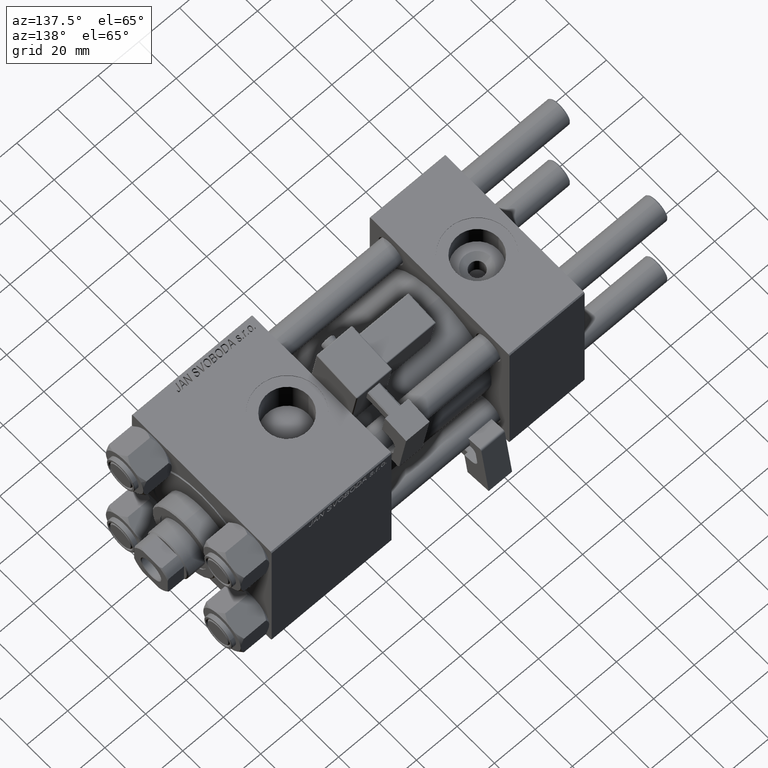
[diagram: clean part render]
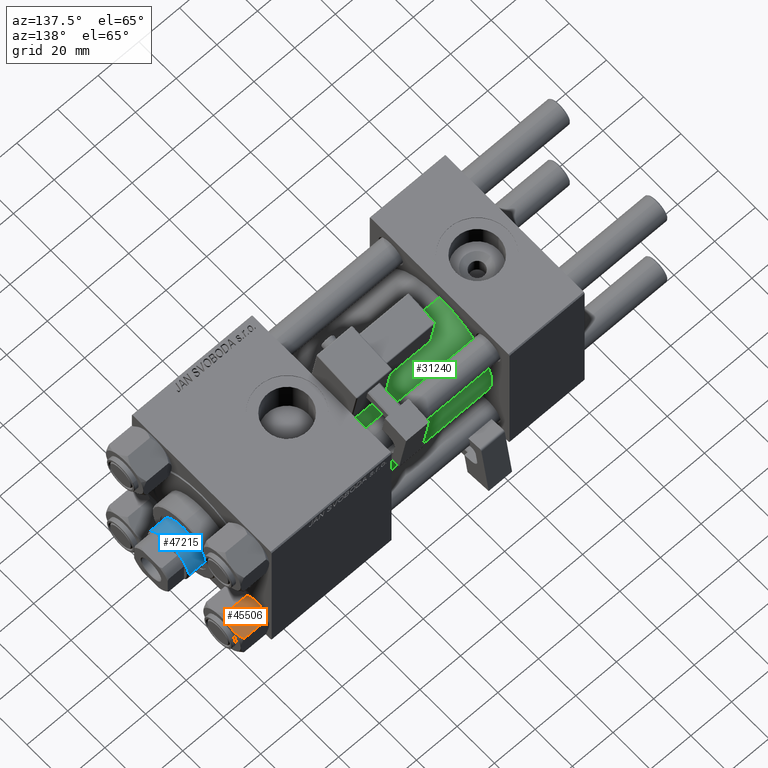
[diagram: same view with three faces highlighted in distinct colors, each labeled with its STEP entity id]
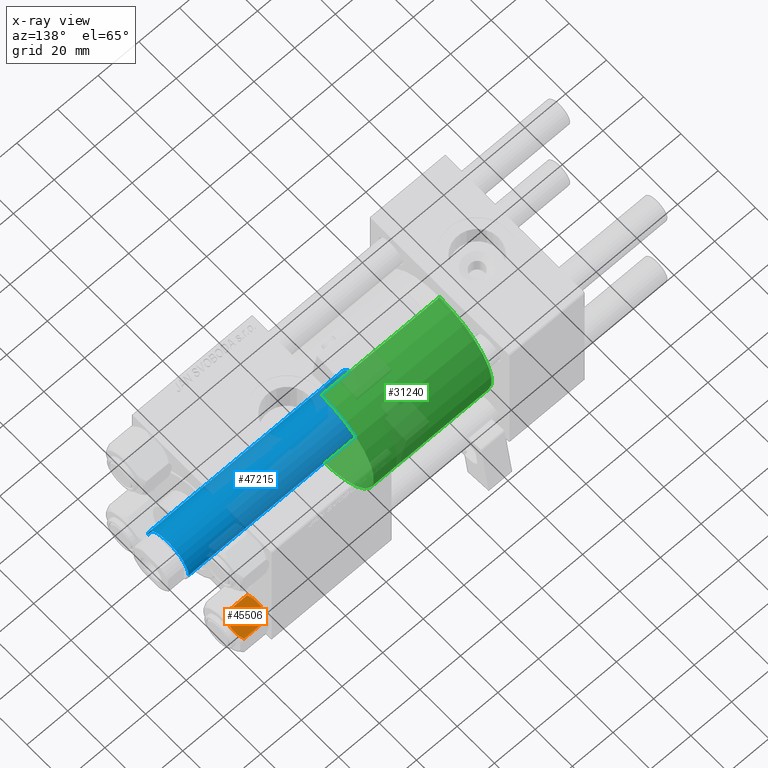
[diagram: x-ray of the same camera — body ghosted, the three highlighted faces saturated]
A machine part, auxiliary view with three faces highlighted in distinct colors.
The next image is the same camera in x-ray (body ghosted, the three faces saturated) — at least one of them is partly hidden behind the body in this view.
Their STEP definitions:

[orange] entity #45506 — the highlighted planar face has unit normal (0, -0.5, -0.866).
#228 = CARTESIAN_POINT ( 'NONE',  ( -8.714999999999992752, -5.031607595987588333, -14.00000000000000000 ) ) ;
#430 = PLANE ( 'NONE',  #39943 ) ;
#538 = CARTESIAN_POINT ( 'NONE',  ( -6.265018354709766868, -9.275100283241449972, -1.101766453314959149 ) ) ;
#747 = CARTESIAN_POINT ( 'NONE',  ( -11.61999999999999922, 6.036006524886462134E-17, -14.00000000000000000 ) ) ;
#920 = B_SPLINE_CURVE_WITH_KNOTS ( 'NONE', 3,
 ( #12351, #24432, #23902, #44404, #538, #36241 ),
 .UNSPECIFIED., .F., .F.,
 ( 4, 2, 4 ),
 ( 0.006022845781655589842, 0.009013049135303640227, 0.01200325248895168714 ),
 .UNSPECIFIED. ) ;
#1212 = VERTEX_POINT ( 'NONE', #19897 ) ;
#1258 = ORIENTED_EDGE ( 'NONE', *, *, #7809, .F. ) ;
#1282 = CARTESIAN_POINT ( 'NONE',  ( -9.729165168613647552, -3.275021996682082825, -0.1903979688073461074 ) ) ;
#1702 = VECTOR ( 'NONE', #44864, 1000.000000000000000 ) ;
#2906 = B_SPLINE_CURVE_WITH_KNOTS ( 'NONE', 3,
 ( #47265, #43582, #12038, #7844, #44354, #4169, #36195, #228 ),
 .UNSPECIFIED., .F., .F.,
 ( 4, 2, 2, 4 ),
 ( 2.544312114902182352E-07, 0.003011550106433542959, 0.004517197944044567919, 0.006022845781655594179 ),
 .UNSPECIFIED. ) ;
#3532 = CARTESIAN_POINT ( 'NONE',  ( -11.61999999999999922, 4.243578825136429979E-17, -12.44321519197517922 ) ) ;
#3778 = CARTESIAN_POINT ( 'NONE',  ( -9.220295946303425083, -4.156409344131452244, -13.99999999999999645 ) ) ;
#4039 = CARTESIAN_POINT ( 'NONE',  ( -11.16498164529022219, -0.7881149087337293579, -12.89823354668504329 ) ) ;
#4169 = CARTESIAN_POINT ( 'NONE',  ( -8.202333004087893897, -5.919572880271055659, -13.96005881939308679 ) ) ;
#5219 = CARTESIAN_POINT ( 'NONE',  ( -8.714999999999992752, -5.031607595987588333, 0.000000000000000000 ) ) ;
#7809 = EDGE_CURVE ( 'NONE', #25996, #42507, #2906, .T. ) ;
#7844 = CARTESIAN_POINT ( 'NONE',  ( -7.455303369716800077, -7.213466161761385109, -13.69973261901325046 ) ) ;
#8564 = DIRECTION ( 'NONE',  ( -0.5000000000000003331, 0.8660254037844384856, 0.000000000000000000 ) ) ;
#9307 = EDGE_CURVE ( 'NONE', #42507, #48278, #11585, .T. ) ;
#9415 = CARTESIAN_POINT ( 'NONE',  ( -10.69859855102501101, -1.595914123792264938, -0.7141438259524708343 ) ) ;
#11585 = B_SPLINE_CURVE_WITH_KNOTS ( 'NONE', 3,
 ( #23228, #3778, #51349, #15338, #4039, #3532 ),
 .UNSPECIFIED., .F., .F.,
 ( 4, 2, 4 ),
 ( 0.006022845781655594179, 0.009013049135303641962, 0.01200325248895168888 ),
 .UNSPECIFIED. ) ;
#12038 = CARTESIAN_POINT ( 'NONE',  ( -6.731401448974980717, -8.467301068182917945, -13.28585617404752917 ) ) ;
#12351 = CARTESIAN_POINT ( 'NONE',  ( -8.714999999999992752, -5.031607595987588333, 0.000000000000000000 ) ) ;
#13362 = CARTESIAN_POINT ( 'NONE',  ( -9.227666995912098713, -4.143642311704126335, -0.03994118060691215222 ) ) ;
#13462 = EDGE_LOOP ( 'NONE', ( #1258, #39566, #17349, #26300, #48926, #48882 ) ) ;
#15338 = CARTESIAN_POINT ( 'NONE',  ( -10.69662495661649793, -1.599332489581332339, -13.28854452935654429 ) ) ;
#17349 = ORIENTED_EDGE ( 'NONE', *, *, #18665, .F. ) ;
#18665 = EDGE_CURVE ( 'NONE', #34138, #28085, #920, .T. ) ;
#19897 = CARTESIAN_POINT ( 'NONE',  ( -11.61999999999999922, -1.565987599140169687E-18, -1.556784808024820776 ) ) ;
#21136 = EDGE_CURVE ( 'NONE', #48278, #1212, #24118, .T. ) ;
#22246 = CARTESIAN_POINT ( 'NONE',  ( -11.16445427487471065, -0.7890283410877966253, -1.101239082899537314 ) ) ;
#23228 = CARTESIAN_POINT ( 'NONE',  ( -8.714999999999992752, -5.031607595987588333, -14.00000000000000000 ) ) ;
#23807 = DIRECTION ( 'NONE',  ( 0.8660254037844384856, 0.5000000000000003331, 0.000000000000000000 ) ) ;
#23902 = CARTESIAN_POINT ( 'NONE',  ( -7.713000053756299046, -6.767122412062954062, -0.1545239700039889863 ) ) ;
#24118 = LINE ( 'NONE', #747, #1702 ) ;
#24432 = CARTESIAN_POINT ( 'NONE',  ( -8.209704053696565751, -5.906805847843727086, -2.149769620131414261E-15 ) ) ;
#24488 = CARTESIAN_POINT ( 'NONE',  ( -8.714999999999992752, -5.031607595987588333, -14.00000000000000000 ) ) ;
#25996 = VERTEX_POINT ( 'NONE', #40125 ) ;
#26300 = ORIENTED_EDGE ( 'NONE', *, *, #32207, .F. ) ;
#26447 = CARTESIAN_POINT ( 'NONE',  ( -9.974696630283190757, -2.849749030213793777, -0.3002673809867424382 ) ) ;
#28085 = VERTEX_POINT ( 'NONE', #30053 ) ;
#28450 = DIRECTION ( 'NONE',  ( -0.000000000000000000, -0.000000000000000000, 1.000000000000000000 ) ) ;
#30053 = CARTESIAN_POINT ( 'NONE',  ( -5.809999999999990727, -10.06321519197518199, -1.556784808024822553 ) ) ;
#30872 = VECTOR ( 'NONE', #28450, 1000.000000000000000 ) ;
#32181 = FACE_OUTER_BOUND ( 'NONE', #13462, .T. ) ;
#32207 = EDGE_CURVE ( 'NONE', #1212, #34138, #33286, .T. ) ;
#33286 = B_SPLINE_CURVE_WITH_KNOTS ( 'NONE', 3,
 ( #37762, #22246, #9415, #26447, #1282, #13362, #41451, #5219 ),
 .UNSPECIFIED., .F., .F.,
 ( 4, 2, 2, 4 ),
 ( 2.544312114904568338E-07, 0.003011550106433539924, 0.004517197944044564449, 0.006022845781655589842 ),
 .UNSPECIFIED. ) ;
#34138 = VERTEX_POINT ( 'NONE', #39053 ) ;
#36195 = CARTESIAN_POINT ( 'NONE',  ( -8.460569896449610994, -5.472293462311864864, -13.99999999999999822 ) ) ;
#36241 = CARTESIAN_POINT ( 'NONE',  ( -5.809999999999990727, -10.06321519197518199, -1.556784808024822553 ) ) ;
#36631 = CARTESIAN_POINT ( 'NONE',  ( -11.61999999999999922, 4.243578825136429979E-17, -12.44321519197517922 ) ) ;
#36866 = LINE ( 'NONE', #48429, #30872 ) ;
#37762 = CARTESIAN_POINT ( 'NONE',  ( -11.61999999999999922, -1.565987599140169687E-18, -1.556784808024820776 ) ) ;
#39053 = CARTESIAN_POINT ( 'NONE',  ( -8.714999999999992752, -5.031607595987588333, 0.000000000000000000 ) ) ;
#39566 = ORIENTED_EDGE ( 'NONE', *, *, #50312, .T. ) ;
#39943 = AXIS2_PLACEMENT_3D ( 'NONE', #40600, #23807, #8564 ) ;
#40125 = CARTESIAN_POINT ( 'NONE',  ( -5.809999999999990727, -10.06321519197518199, -12.44321519197517745 ) ) ;
#40600 = CARTESIAN_POINT ( 'NONE',  ( -5.809999999999990727, -10.06321519197518199, -14.00000000000000000 ) ) ;
#41451 = CARTESIAN_POINT ( 'NONE',  ( -8.969430103550379840, -4.590921729663317130, -2.185345003916095664E-15 ) ) ;
#42507 = VERTEX_POINT ( 'NONE', #24488 ) ;
#43582 = CARTESIAN_POINT ( 'NONE',  ( -6.265545725125275744, -9.274186850887387479, -12.89876091710046246 ) ) ;
#44354 = CARTESIAN_POINT ( 'NONE',  ( -7.700834831386339729, -6.788193195293098725, -13.80960203119265017 ) ) ;
#44404 = CARTESIAN_POINT ( 'NONE',  ( -6.733375043383487579, -8.463882702393844326, -0.7114554706434568221 ) ) ;
#44864 = DIRECTION ( 'NONE',  ( -0.000000000000000000, -0.000000000000000000, 1.000000000000000000 ) ) ;
#45506 = ADVANCED_FACE ( 'NONE', ( #32181 ), #430, .F. ) ;
#47265 = CARTESIAN_POINT ( 'NONE',  ( -5.809999999999990727, -10.06321519197518199, -12.44321519197517745 ) ) ;
#48278 = VERTEX_POINT ( 'NONE', #36631 ) ;
#48429 = CARTESIAN_POINT ( 'NONE',  ( -5.809999999999990727, -10.06321519197518199, -14.00000000000000000 ) ) ;
#48882 = ORIENTED_EDGE ( 'NONE', *, *, #9307, .F. ) ;
#48926 = ORIENTED_EDGE ( 'NONE', *, *, #21136, .F. ) ;
#50312 = EDGE_CURVE ( 'NONE', #25996, #28085, #36866, .T. ) ;
#51349 = CARTESIAN_POINT ( 'NONE',  ( -9.716999946243692676, -3.296092779912225712, -13.84547602999601246 ) ) ;

[blue] entity #47215 — the highlighted cylindrical surface (edge-blend (fillet) strip) has radius 11 mm, axis along (-1, 0, 0).
#303 = ORIENTED_EDGE ( 'NONE', *, *, #26500, .F. ) ;
#1870 = DIRECTION ( 'NONE',  ( 0.000000000000000000, 0.000000000000000000, -1.000000000000000000 ) ) ;
#2698 = VECTOR ( 'NONE', #30554, 1000.000000000000000 ) ;
#3951 = DIRECTION ( 'NONE',  ( 0.000000000000000000, 0.000000000000000000, 1.000000000000000000 ) ) ;
#4639 = DIRECTION ( 'NONE',  ( -0.000000000000000000, -0.000000000000000000, -1.000000000000000000 ) ) ;
#6472 = ORIENTED_EDGE ( 'NONE', *, *, #20944, .T. ) ;
#9717 = CARTESIAN_POINT ( 'NONE',  ( -11.00000000000000000, 0.000000000000000000, 134.0000000000000000 ) ) ;
#9973 = LINE ( 'NONE', #9717, #41093 ) ;
#13528 = LINE ( 'NONE', #18226, #2698 ) ;
#14195 = ORIENTED_EDGE ( 'NONE', *, *, #43334, .T. ) ;
#15249 = DIRECTION ( 'NONE',  ( 1.000000000000000000, 0.000000000000000000, 0.000000000000000000 ) ) ;
#15442 = CARTESIAN_POINT ( 'NONE',  ( 11.00000000000000000, 1.347111479062088405E-15, 38.00000000000000000 ) ) ;
#15763 = CARTESIAN_POINT ( 'NONE',  ( 0.000000000000000000, 0.000000000000000000, 38.00000000000000000 ) ) ;
#18226 = CARTESIAN_POINT ( 'NONE',  ( 11.00000000000000000, 1.347111479062088405E-15, 134.0000000000000000 ) ) ;
#20944 = EDGE_CURVE ( 'NONE', #23397, #51100, #9973, .T. ) ;
#21475 = EDGE_LOOP ( 'NONE', ( #303, #14195, #6472, #25148 ) ) ;
#22750 = AXIS2_PLACEMENT_3D ( 'NONE', #15763, #3951, #15249 ) ;
#23397 = VERTEX_POINT ( 'NONE', #30480 ) ;
#24520 = EDGE_CURVE ( 'NONE', #51100, #39694, #39494, .T. ) ;
#25148 = ORIENTED_EDGE ( 'NONE', *, *, #24520, .T. ) ;
#26500 = EDGE_CURVE ( 'NONE', #28293, #39694, #13528, .T. ) ;
#28293 = VERTEX_POINT ( 'NONE', #48414 ) ;
#30480 = CARTESIAN_POINT ( 'NONE',  ( -11.00000000000000000, 0.000000000000000000, 133.5000000000000000 ) ) ;
#30554 = DIRECTION ( 'NONE',  ( -0.000000000000000000, -0.000000000000000000, -1.000000000000000000 ) ) ;
#32465 = CYLINDRICAL_SURFACE ( 'NONE', #44198, 11.00000000000000000 ) ;
#36679 = DIRECTION ( 'NONE',  ( -1.000000000000000000, 0.000000000000000000, 0.000000000000000000 ) ) ;
#38182 = CIRCLE ( 'NONE', #39876, 11.00000000000000000 ) ;
#39494 = CIRCLE ( 'NONE', #22750, 11.00000000000000000 ) ;
#39694 = VERTEX_POINT ( 'NONE', #15442 ) ;
#39876 = AXIS2_PLACEMENT_3D ( 'NONE', #50198, #1870, #46784 ) ;
#41093 = VECTOR ( 'NONE', #41246, 1000.000000000000000 ) ;
#41159 = FACE_OUTER_BOUND ( 'NONE', #21475, .T. ) ;
#41246 = DIRECTION ( 'NONE',  ( -0.000000000000000000, -0.000000000000000000, -1.000000000000000000 ) ) ;
#42882 = CARTESIAN_POINT ( 'NONE',  ( -11.00000000000000000, 0.000000000000000000, 38.00000000000000000 ) ) ;
#43334 = EDGE_CURVE ( 'NONE', #28293, #23397, #38182, .T. ) ;
#44198 = AXIS2_PLACEMENT_3D ( 'NONE', #44581, #4639, #36679 ) ;
#44581 = CARTESIAN_POINT ( 'NONE',  ( 0.000000000000000000, 0.000000000000000000, 134.0000000000000000 ) ) ;
#46784 = DIRECTION ( 'NONE',  ( 1.000000000000000000, 0.000000000000000000, 0.000000000000000000 ) ) ;
#47215 = ADVANCED_FACE ( 'NONE', ( #41159 ), #32465, .T. ) ;
#48414 = CARTESIAN_POINT ( 'NONE',  ( 11.00000000000000000, 1.347111479062088405E-15, 133.5000000000000000 ) ) ;
#50198 = CARTESIAN_POINT ( 'NONE',  ( 0.000000000000000000, 0.000000000000000000, 133.5000000000000000 ) ) ;
#51100 = VERTEX_POINT ( 'NONE', #42882 ) ;

[green] entity #31240 — the highlighted cylindrical surface (partial cylindrical patch) has radius 28 mm, axis along (-1, -0, -0).
#428 = CARTESIAN_POINT ( 'NONE',  ( 95.00000000000000000, 0.000000000000000000, 0.000000000000000000 ) ) ;
#4270 = LINE ( 'NONE', #31832, #28587 ) ;
#4909 = AXIS2_PLACEMENT_3D ( 'NONE', #428, #31676, #16430 ) ;
#7454 = AXIS2_PLACEMENT_3D ( 'NONE', #36566, #19769, #16343 ) ;
#7695 = CARTESIAN_POINT ( 'NONE',  ( 95.00000000000000000, 0.000000000000000000, 0.000000000000000000 ) ) ;
#8009 = VECTOR ( 'NONE', #43284, 1000.000000000000000 ) ;
#12357 = ORIENTED_EDGE ( 'NONE', *, *, #19122, .T. ) ;
#14807 = VERTEX_POINT ( 'NONE', #28423 ) ;
#16343 = DIRECTION ( 'NONE',  ( 0.000000000000000000, 0.000000000000000000, 1.000000000000000000 ) ) ;
#16430 = DIRECTION ( 'NONE',  ( 0.000000000000000000, 0.000000000000000000, -1.000000000000000000 ) ) ;
#19114 = CARTESIAN_POINT ( 'NONE',  ( 95.00000000000000000, 0.000000000000000000, 28.00000000000000000 ) ) ;
#19122 = EDGE_CURVE ( 'NONE', #27210, #14807, #25069, .T. ) ;
#19769 = DIRECTION ( 'NONE',  ( 1.000000000000000000, -0.000000000000000000, 0.000000000000000000 ) ) ;
#20013 = CYLINDRICAL_SURFACE ( 'NONE', #43044, 28.00000000000000000 ) ;
#20272 = DIRECTION ( 'NONE',  ( -1.000000000000000000, -0.000000000000000000, -0.000000000000000000 ) ) ;
#20769 = CARTESIAN_POINT ( 'NONE',  ( 95.00000000000000000, 3.429011037612588487E-15, -28.00000000000000000 ) ) ;
#21927 = VERTEX_POINT ( 'NONE', #29094 ) ;
#23704 = FACE_OUTER_BOUND ( 'NONE', #37378, .T. ) ;
#24223 = EDGE_CURVE ( 'NONE', #50626, #27210, #4270, .T. ) ;
#25069 = CIRCLE ( 'NONE', #7454, 28.00000000000000000 ) ;
#26112 = CARTESIAN_POINT ( 'NONE',  ( 37.00000000000000000, 3.429011037612588487E-15, -28.00000000000000000 ) ) ;
#27210 = VERTEX_POINT ( 'NONE', #26112 ) ;
#28423 = CARTESIAN_POINT ( 'NONE',  ( 37.00000000000000000, 0.000000000000000000, 28.00000000000000000 ) ) ;
#28587 = VECTOR ( 'NONE', #20272, 1000.000000000000000 ) ;
#29094 = CARTESIAN_POINT ( 'NONE',  ( 95.00000000000000000, 0.000000000000000000, 28.00000000000000000 ) ) ;
#31240 = ADVANCED_FACE ( 'NONE', ( #23704 ), #20013, .T. ) ;
#31676 = DIRECTION ( 'NONE',  ( 1.000000000000000000, 0.000000000000000000, 0.000000000000000000 ) ) ;
#31832 = CARTESIAN_POINT ( 'NONE',  ( 95.00000000000000000, 3.429011037612588487E-15, -28.00000000000000000 ) ) ;
#36038 = DIRECTION ( 'NONE',  ( 0.000000000000000000, 0.000000000000000000, 1.000000000000000000 ) ) ;
#36566 = CARTESIAN_POINT ( 'NONE',  ( 37.00000000000000000, 0.000000000000000000, 0.000000000000000000 ) ) ;
#37378 = EDGE_LOOP ( 'NONE', ( #45961, #48411, #12357, #41052 ) ) ;
#39065 = LINE ( 'NONE', #19114, #8009 ) ;
#39980 = DIRECTION ( 'NONE',  ( -1.000000000000000000, -0.000000000000000000, -0.000000000000000000 ) ) ;
#41052 = ORIENTED_EDGE ( 'NONE', *, *, #43620, .F. ) ;
#43044 = AXIS2_PLACEMENT_3D ( 'NONE', #7695, #39980, #36038 ) ;
#43284 = DIRECTION ( 'NONE',  ( -1.000000000000000000, -0.000000000000000000, -0.000000000000000000 ) ) ;
#43620 = EDGE_CURVE ( 'NONE', #21927, #14807, #39065, .T. ) ;
#45961 = ORIENTED_EDGE ( 'NONE', *, *, #50011, .F. ) ;
#48411 = ORIENTED_EDGE ( 'NONE', *, *, #24223, .T. ) ;
#50011 = EDGE_CURVE ( 'NONE', #50626, #21927, #51849, .T. ) ;
#50626 = VERTEX_POINT ( 'NONE', #20769 ) ;
#51849 = CIRCLE ( 'NONE', #4909, 28.00000000000000000 ) ;